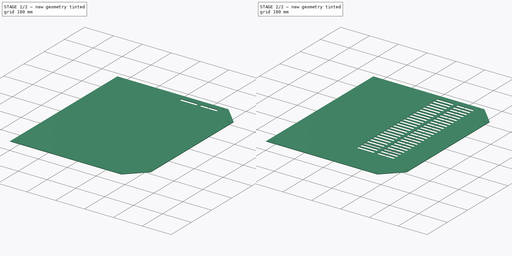
[diagram: build sequence overview — one tinted view per stage of 2, left to right]
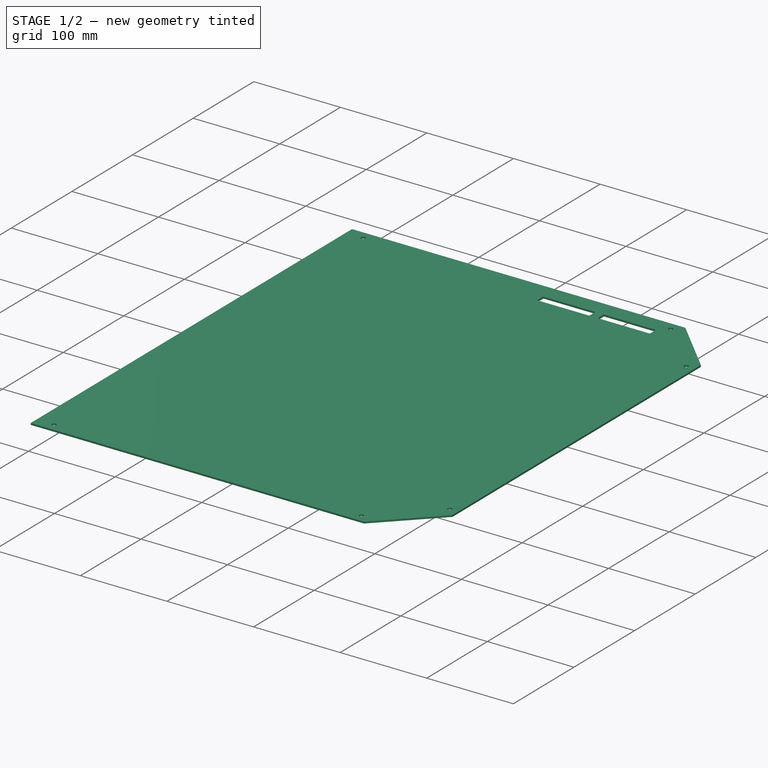
[diagram: stage 1 of 2 — iso view after this stage's code; geometry added in this stage tinted green]
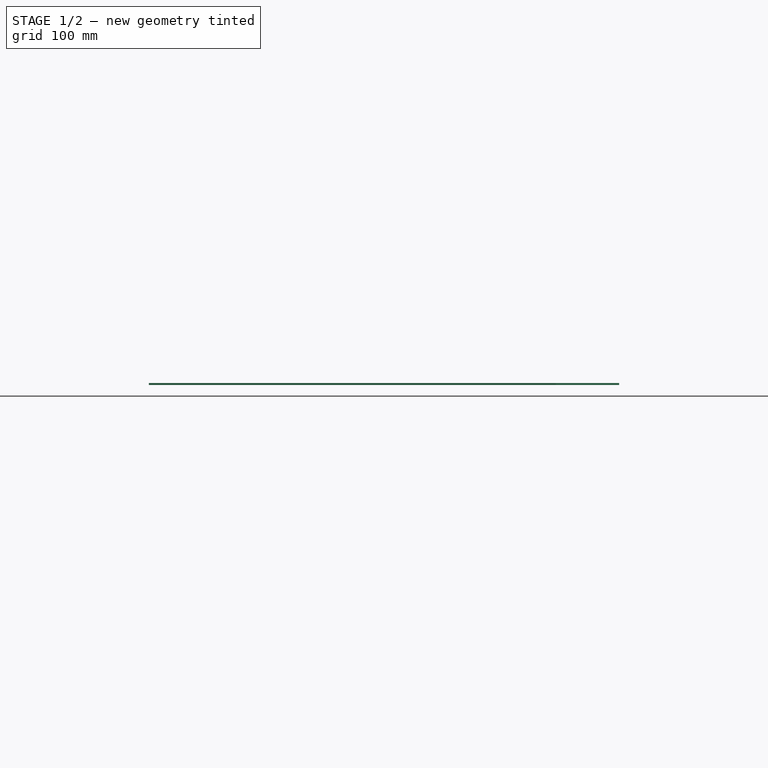
[diagram: stage 1 of 2 — front view after this stage's code; geometry added in this stage tinted green]
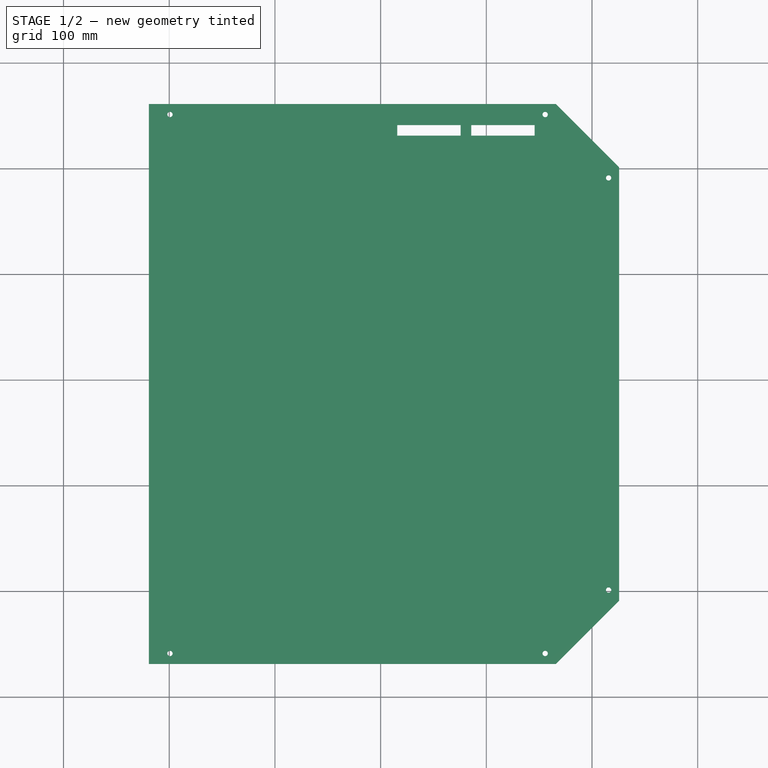
[diagram: stage 1 of 2 — top view after this stage's code; geometry added in this stage tinted green]
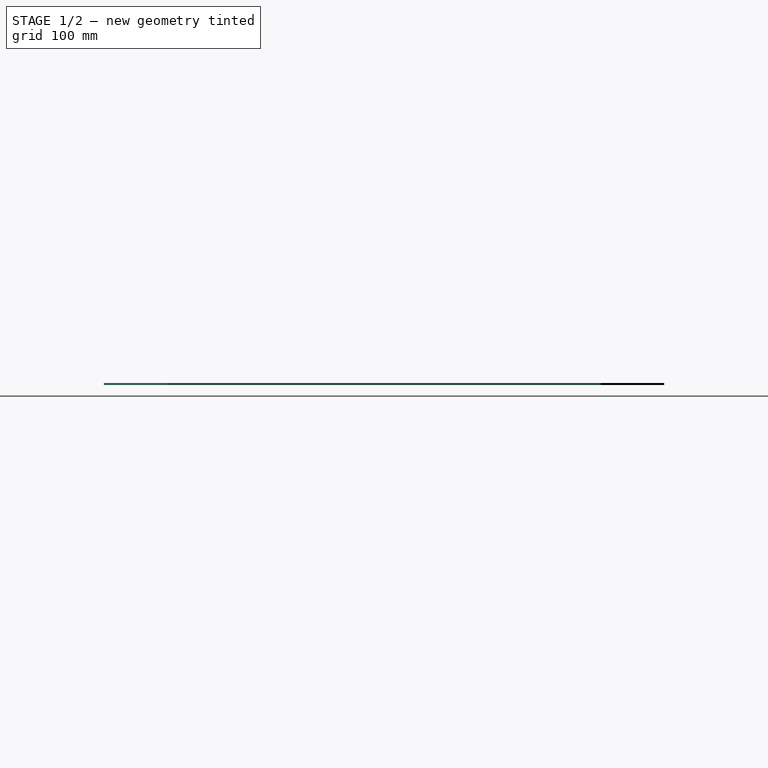
[diagram: stage 1 of 2 — right view after this stage's code; geometry added in this stage tinted green]
FCSTD DOCUMENT  (FreeCAD 0.16R6698 (Git))
Label: Switch_Side_Back_Plate
License: All rights reserved
LicenseURL: http://en.wikipedia.org/wiki/All_rights_reserved
objects: Sketcher::SketchObject×2, PartDesign::Pad×1, PartDesign::Pocket×1, PartDesign::LinearPattern×1
note: 7 computed .brp shape members not serialized (recipe doc carries the construction recipe); baked Part::Feature solids carry a one-line shape summary decoded from their .brp

FEATURE [Sketcher::SketchObject] Sketch
  sketch-geometry (12):
    g0: LineSegment StartX=-219.291 StartY=261.198 StartZ=0 EndX=165.709 EndY=261.198 EndZ=0
    g1: LineSegment StartX=165.709 StartY=261.198 StartZ=0 EndX=225.709 EndY=201.198 EndZ=0
    g2: LineSegment StartX=225.709 StartY=201.198 StartZ=0 EndX=225.709 EndY=-208.802 EndZ=0
    g3: LineSegment StartX=225.709 StartY=-208.802 StartZ=0 EndX=165.709 EndY=-268.802 EndZ=0
    g4: LineSegment StartX=165.709 StartY=-268.802 StartZ=0 EndX=-219.291 EndY=-268.802 EndZ=0
    g5: LineSegment StartX=-219.291 StartY=-268.802 StartZ=0 EndX=-219.291 EndY=261.198 EndZ=0
    g6: Circle CenterX=155.709 CenterY=251.198 CenterZ=0 NormalX=0 NormalY=0 NormalZ=1 Radius=2.5
    g7: Circle CenterX=215.709 CenterY=191.198 CenterZ=0 NormalX=0 NormalY=0 NormalZ=1 Radius=2.5
    g8: Circle CenterX=215.709 CenterY=-198.802 CenterZ=0 NormalX=0 NormalY=0 NormalZ=1 Radius=2.5
    g9: Circle CenterX=155.709 CenterY=-258.802 CenterZ=0 NormalX=0 NormalY=0 NormalZ=1 Radius=2.5
    g10: Circle CenterX=-199.291 CenterY=251.198 CenterZ=0 NormalX=0 NormalY=0 NormalZ=1 Radius=2.5
    g11: Circle CenterX=-199.291 CenterY=-258.802 CenterZ=0 NormalX=0 NormalY=0 NormalZ=1 Radius=2.5
  constraints (30):
    c: Horizontal(g0)
    c: Coincident(g0,g1)
    c: Coincident(g1,g2)
    c: Vertical(g2)
    c: Coincident(g2,g3)
    c: Coincident(g3,g4)
    c: Horizontal(g4)
    c: Vertical(g5)
    c: DistanceX(g1,g1) = 60
    c: DistanceY(g1,g1) = 60
    c: DistanceX(g3,g3) = 60
    c: DistanceY(g3,g3) = 60
    c: DistanceY(g5,g5) = 530
    c: DistanceX(g0,g0) = 385
    c: Coincident(g0,g5)
    c: Coincident(g4,g5)
    c: DistanceX(g6,g0) = 10
    c: DistanceY(g6,g0) = 10
    c: DistanceY(g7,g1) = 10
    c: DistanceX(g7,g1) = 10
    c: DistanceY(g2,g8) = 10
    c: DistanceX(g8,g2) = 10
    c: DistanceY(g3,g9) = 10
    c: DistanceX(g9,g3) = 10
    c: Radius(g11) = 2.5
    c: Equal(g11,g10)
    c: DistanceY(g10,g0) = 10
    c: DistanceX(g0,g10) = 20
    c: DistanceX(g4,g11) = 20
    c: DistanceY(g4,g11) = 10
FEATURE [PartDesign::Pad] Pad
  Length = 2
  Length2 = 100
  Sketch = -> Sketch
  Type = 0
FEATURE [Sketcher::SketchObject] Sketch001
  ExternalGeometry = -> [Pad]
  Placement = pos=(0,0,2) rot=(0,0,1;0rad)
  Support = -> Pad [Face14]
  sketch-geometry (8):
    g0: LineSegment StartX=15.7094 StartY=241.198 StartZ=0 EndX=75.7094 EndY=241.198 EndZ=0
    g1: LineSegment StartX=145.709 StartY=241.198 StartZ=0 EndX=145.709 EndY=231.198 EndZ=0
    g2: LineSegment StartX=145.709 StartY=231.198 StartZ=0 EndX=85.7094 EndY=231.198 EndZ=0
    g3: LineSegment StartX=15.7094 StartY=231.198 StartZ=0 EndX=15.7094 EndY=241.198 EndZ=0
    g4: LineSegment StartX=75.7094 StartY=241.198 StartZ=0 EndX=75.7094 EndY=231.198 EndZ=0
    g5: LineSegment StartX=85.7094 StartY=241.198 StartZ=0 EndX=85.7094 EndY=231.198 EndZ=0
    g6: LineSegment StartX=85.7094 StartY=241.198 StartZ=0 EndX=145.709 EndY=241.198 EndZ=0
    g7: LineSegment StartX=75.7094 StartY=231.198 StartZ=0 EndX=15.7094 EndY=231.198 EndZ=0
  constraints (22):
    c: Coincident(g6,g1)
    c: Coincident(g1,g2)
    c: Coincident(g7,g3)
    c: Coincident(g3,g0)
    c: Horizontal(g0)
    c: Horizontal(g2)
    c: Vertical(g1)
    c: Vertical(g3)
    c: DistanceY(g1,g1) = 10
    c: DistanceX(g6,g-3) = 80
    c: DistanceX(g0,g6) = 130
    c: DistanceY(g6,g-4) = 20
    c: Vertical(g4)
    c: Vertical(g5)
    c: Coincident(g0,g4)
    c: Coincident(g6,g5)
    c: Tangent(g0,g6)
    c: Coincident(g2,g5)
    c: Coincident(g7,g4)
    c: Tangent(g2,g7)
    c: DistanceX(g0,g0) = 60
    c: DistanceX(g6,g6) = 60
FEATURE [PartDesign::Pocket] Pocket
  Length = 5
  Sketch = -> Sketch001
  Type = 0
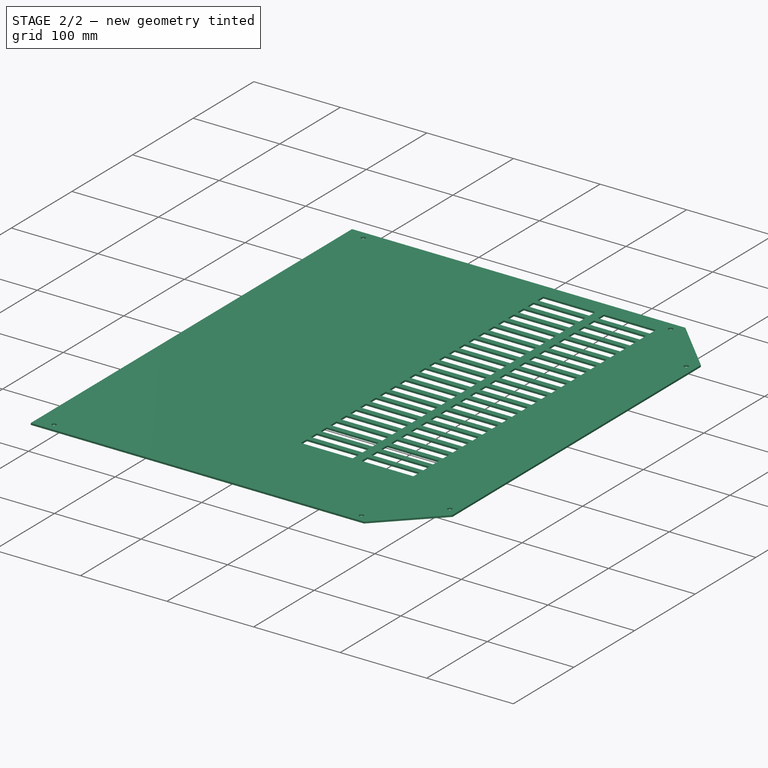
[diagram: stage 2 of 2 — iso view after this stage's code; geometry added in this stage tinted green]
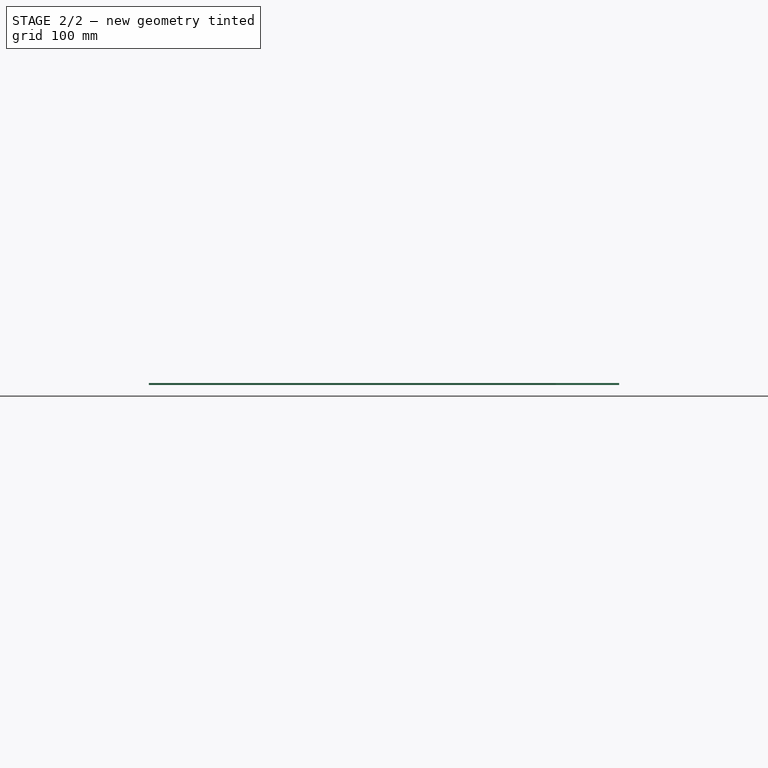
[diagram: stage 2 of 2 — front view after this stage's code; geometry added in this stage tinted green]
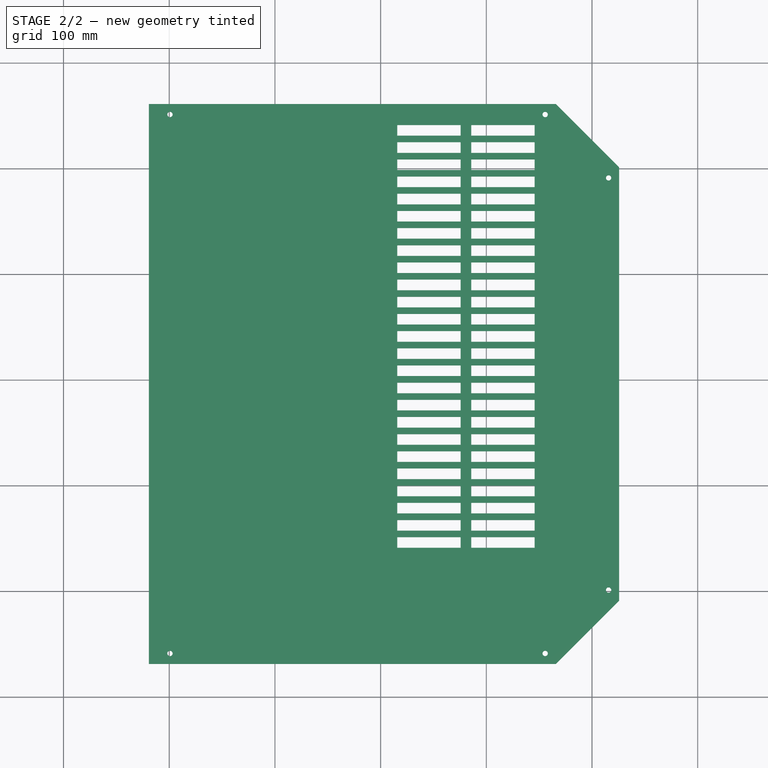
[diagram: stage 2 of 2 — top view after this stage's code; geometry added in this stage tinted green]
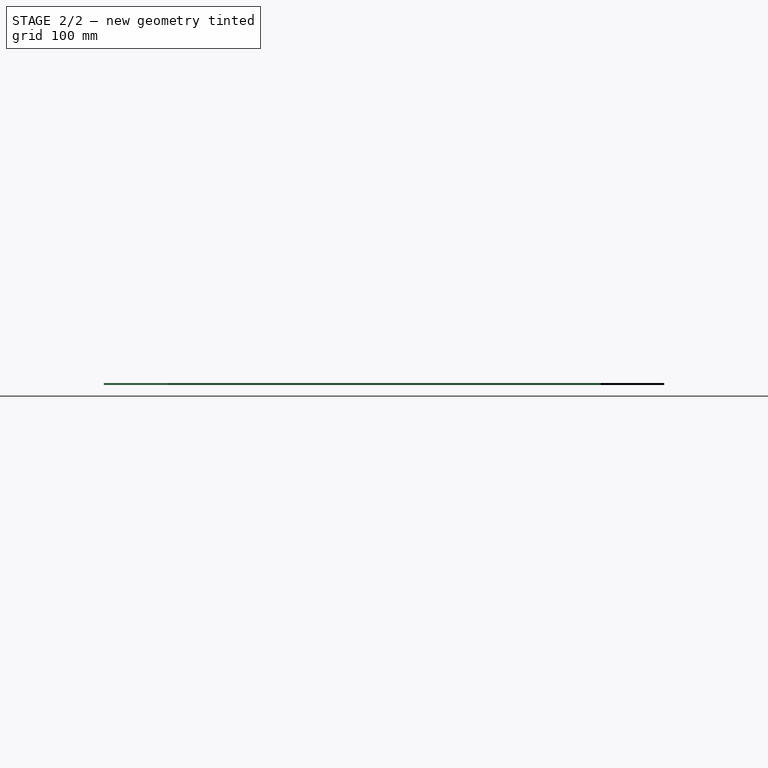
[diagram: stage 2 of 2 — right view after this stage's code; geometry added in this stage tinted green]
FEATURE [PartDesign::LinearPattern] LinearPattern
  Direction = -> Sketch001 [V_Axis]
  Length = 390
  Occurrences = 25
  Originals = -> [Pocket]
  Reversed = true
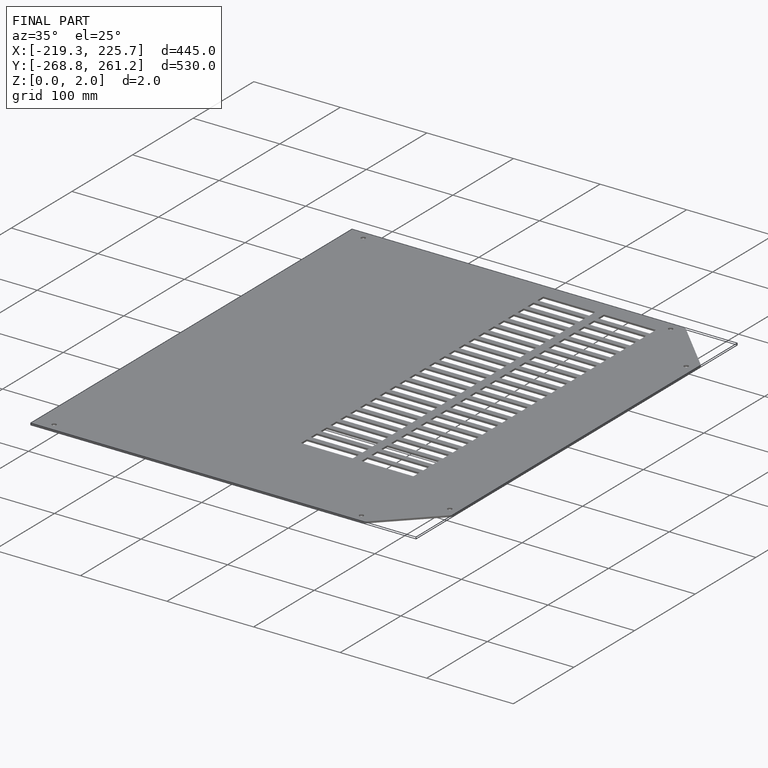
[diagram: finished part — iso view with bounding-box wireframe]
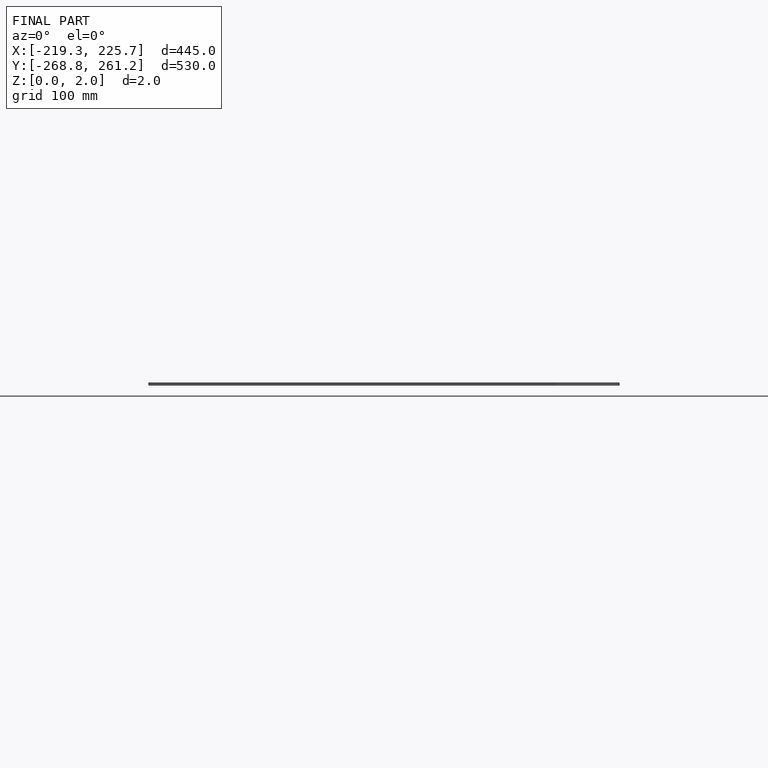
[diagram: finished part — front view with bounding-box wireframe]
